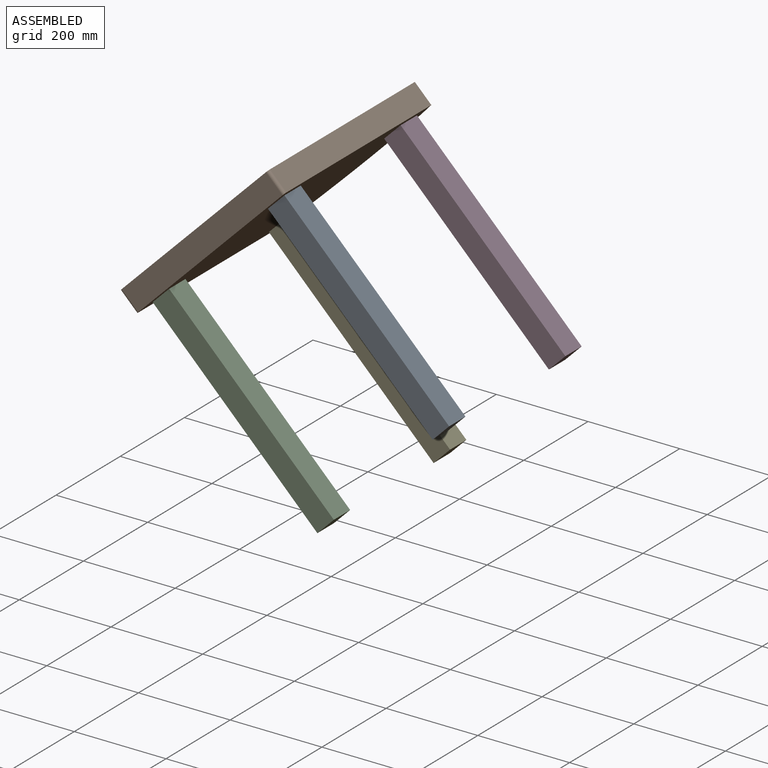
[diagram: assembled view]
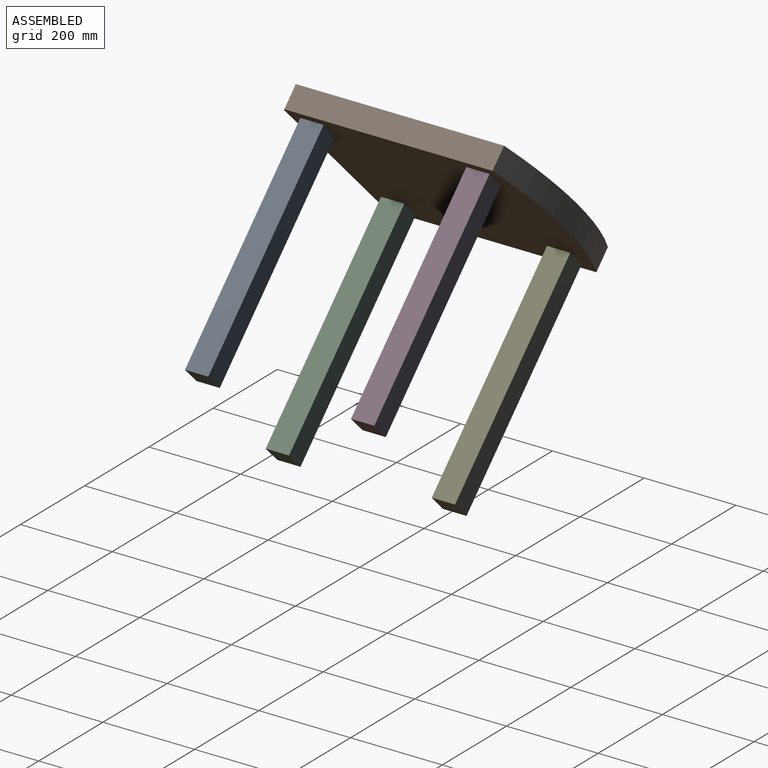
[diagram: assembled view, second angle]
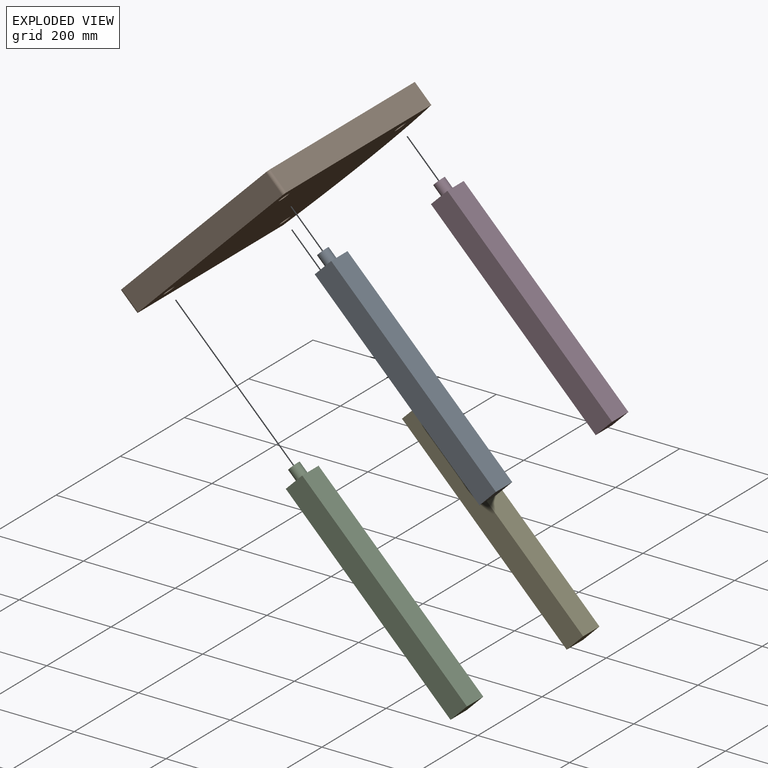
[diagram: exploded view]
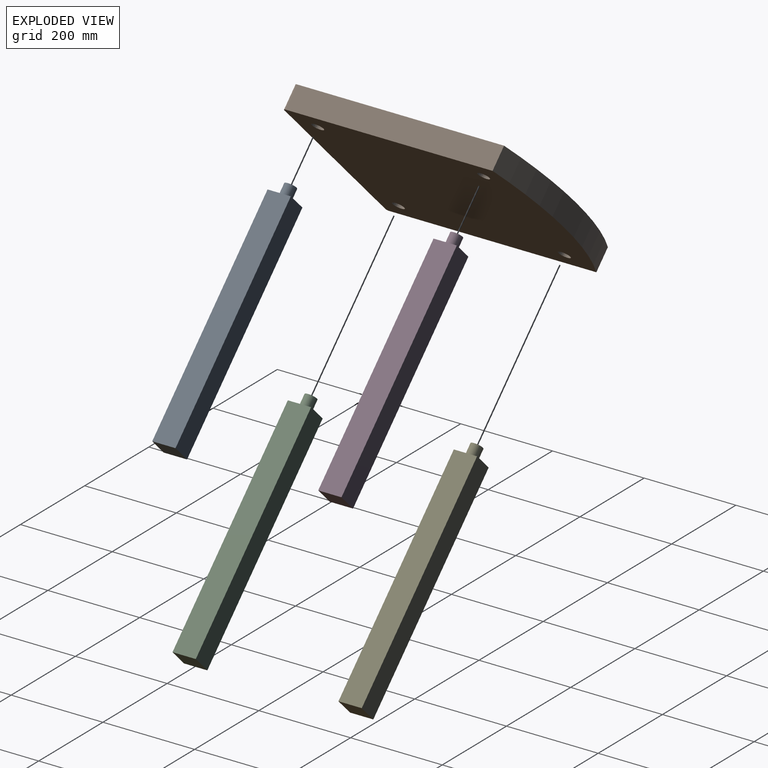
[diagram: exploded view, second angle]
ASSEMBLY  parts=5 mates=4
PART A: 8 faces, bbox 50.8x50.8x533.4 mm
  f0: plane 508x50.8mm, normal (-1,0,0), area 25806.4mm2, adj f1,f3,f4,f5
  f1: plane 508x50.8mm, normal (0,1,0), area 25806.4mm2, adj f0,f2,f4,f5
  f2: plane 508x50.8mm, normal (1,0,0), area 25806.4mm2, adj f1,f3,f4,f5
  f3: plane 508x50.8mm, normal (0,-1,0), area 25806.4mm2, adj f0,f2,f4,f5
  f4: plane 50.8x50.8mm, normal (0,0,-1), area 2580.6mm2, adj f0,f1,f2,f3
  f5: plane 50.8x50.8mm, normal (0,0,1), area 2073.9mm2, adj f0,f1,f2,f3,f6
  f6: cylinder r=12.7mm len=25.4mm, axis (0,0,-1), area 2026.8mm2, adj f5,f7
  f7: plane 25.4x25.4mm, normal (0,0,1), area 506.7mm2, adj f6
PART B: 16 faces, bbox 457.2x499.8x50.8 mm
  f0: plane 499.78x457.2mm, normal (0,0,-1), area 220054.2mm2, adj f1,f2,f3,f4,f5,f6,f8,f10
  f1: cylinder r=635mm len=457.2mm, axis (0,0,-1), area 23759.2mm2, adj f0,f2,f6,f7
  f2: plane 450.85x50.8mm, normal (-1,0,0), area 22903.2mm2, adj f0,f1,f3,f7
  f3: cylinder r=6.35mm len=50.8mm, axis (0,0,-1), area 506.7mm2, adj f0,f2,f4,f7
  f4: plane 444.5x50.8mm, normal (0,-1,0), area 22580.6mm2, adj f0,f3,f5,f7
  f5: cylinder r=6.35mm len=50.8mm, axis (0,0,-1), area 506.7mm2, adj f0,f4,f6,f7
  f6: plane 450.85x50.8mm, normal (1,0,0), area 22903.2mm2, adj f0,f1,f5,f7
  f7: plane 499.78x457.2mm, normal (0,0,1), area 222081.1mm2, adj f1,f2,f3,f4,f5,f6
  f8: cylinder r=12.7mm len=25.4mm, axis (0,0,-1), area 2026.8mm2, adj f0,f9
  f9: plane 25.4x25.4mm, normal (0,0,-1), area 506.7mm2, adj f8
  f10: cylinder r=12.7mm len=25.4mm, axis (0,0,-1), area 2026.8mm2, adj f0,f11
  f11: plane 25.4x25.4mm, normal (0,0,-1), area 506.7mm2, adj f10
  f12: cylinder r=12.7mm len=25.4mm, axis (0,0,-1), area 2026.8mm2, adj f0,f13
  f13: plane 25.4x25.4mm, normal (0,0,-1), area 506.7mm2, adj f12
  f14: cylinder r=12.7mm len=25.4mm, axis (0,0,-1), area 2026.8mm2, adj f0,f15
  f15: plane 25.4x25.4mm, normal (0,0,-1), area 506.7mm2, adj f14
PART C: same geometry as A
PART D: same geometry as A
PART E: same geometry as A
PLACE A rot(axis=(0,-1,0),45deg) t=(36.8,0,10.02)mm
PLACE B rot(axis=(0,-1,0),45deg) t=(36.8,0,10.02)mm
PLACE C rot(axis=(0,-1,0),45deg) t=(-214.65,0,-241.42)mm
PLACE D rot(axis=(0,-1,0),45deg) t=(36.8,361.95,10.02)mm
PLACE E rot(axis=(0,-1,0),45deg) t=(-214.65,361.95,-241.42)mm
MATE fastened C.f6 <-> B.f14  axis (-0.71,0,0.71) through (-106.88,-177.8,-97.74)mm
MATE fastened A.f6 <-> B.f12  axis (-0.71,0,0.71) through (144.56,-177.8,153.71)mm
MATE fastened E.f6 <-> B.f8  axis (-0.71,0,0.71) through (-106.88,184.15,-97.74)mm
MATE fastened D.f6 <-> B.f10  axis (-0.71,0,0.71) through (144.56,184.15,153.71)mm
